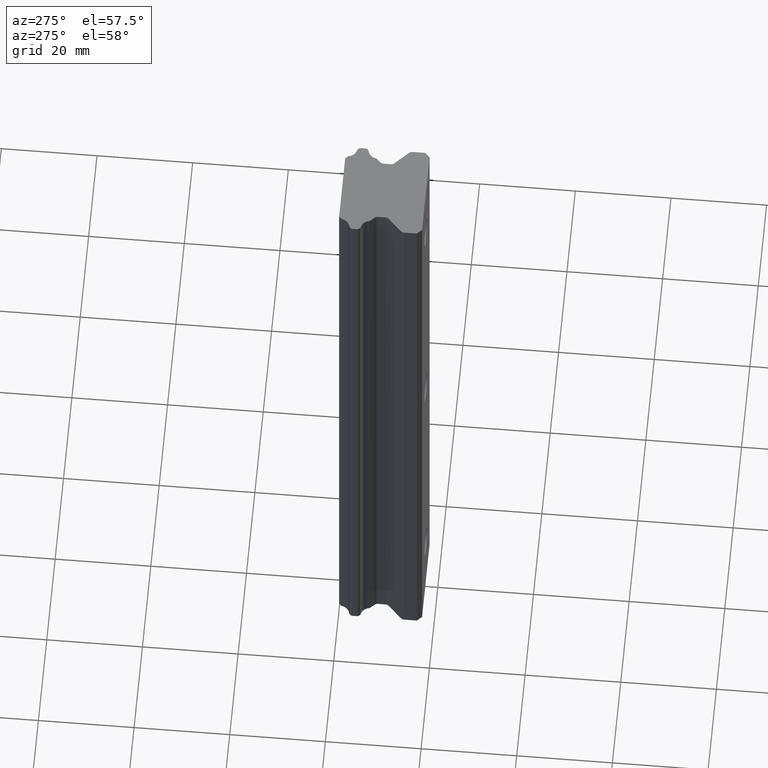
[diagram: clean part render]
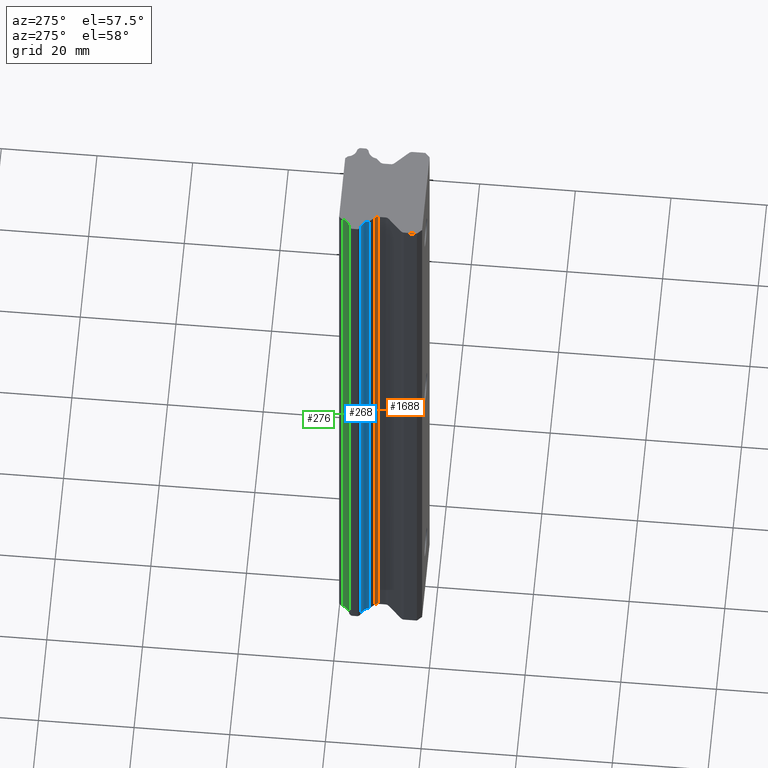
[diagram: same view with three faces highlighted in distinct colors, each labeled with its STEP entity id]
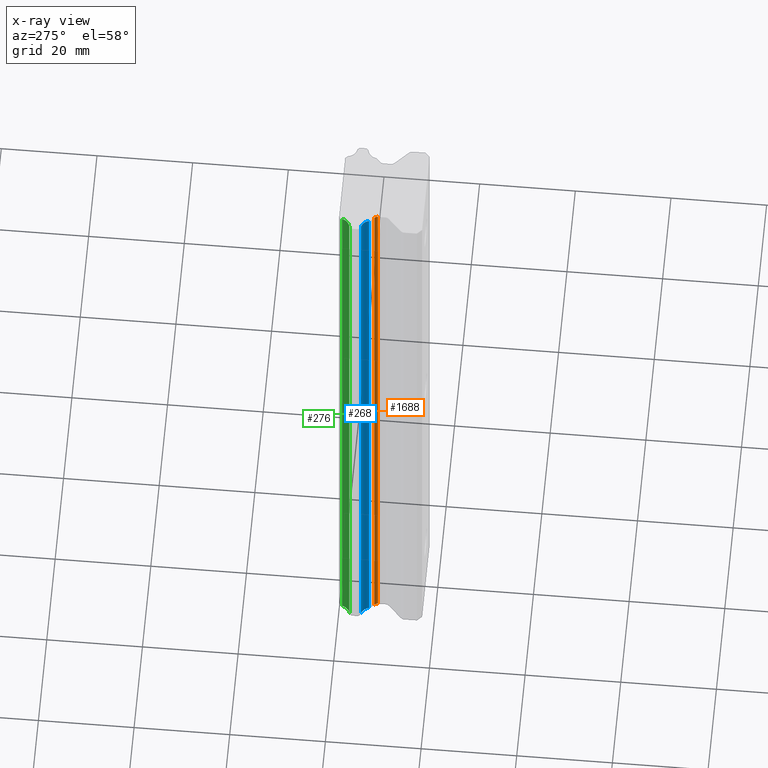
[diagram: x-ray of the same camera — body ghosted, the three highlighted faces saturated]
A machine part, auxiliary view with three faces highlighted in distinct colors.
The next image is the same camera in x-ray (body ghosted, the three faces saturated) — at least one of them is partly hidden behind the body in this view.
Their STEP definitions:

[orange] entity #1688 — the highlighted cylindrical surface (edge-blend (fillet) strip) has radius 1 mm, axis along (0, 0, 1).
#864 = CARTESIAN_POINT ( 'NONE',  ( -6.892893218842632800, -7.347827392350683200, -75.00000000000000000 ) ) ;
#875 = CARTESIAN_POINT ( 'NONE',  ( -6.892893218842632800, -7.347827392350683200, 75.00000000000004300 ) ) ;
#876 = DIRECTION ( 'NONE',  ( 1.000000000000000000, 0.0000000000000000000, 0.0000000000000000000 ) ) ;
#877 = DIRECTION ( 'NONE',  ( 0.0000000000000000000, 0.0000000000000000000, 1.000000000000000000 ) ) ;
#878 = CARTESIAN_POINT ( 'NONE',  ( -7.599999999999999600, -8.054934173567000100, -75.00000000000000000 ) ) ;
#879 = AXIS2_PLACEMENT_3D ( 'NONE', #878, #877, #876 ) ;
#880 = CIRCLE ( 'NONE', #879, 1.000000000000000000 ) ;
#881 = DIRECTION ( 'NONE',  ( 0.0000000000000000000, 0.0000000000000000000, -1.000000000000000000 ) ) ;
#882 = VECTOR ( 'NONE', #881, 1000.000000000000000 ) ;
#883 = CARTESIAN_POINT ( 'NONE',  ( -6.599999999999999600, -8.054934173568000200, -75.00000000000000000 ) ) ;
#884 = LINE ( 'NONE', #883, #882 ) ;
#885 = CARTESIAN_POINT ( 'NONE',  ( -6.599999999999999600, -8.054934173567646700, -75.00000000000000000 ) ) ;
#934 = CARTESIAN_POINT ( 'NONE',  ( -6.599999999999999600, -8.054934173567646700, 75.00000000000000000 ) ) ;
#935 = DIRECTION ( 'NONE',  ( 0.0000000000000000000, 0.0000000000000000000, 1.000000000000000000 ) ) ;
#936 = VECTOR ( 'NONE', #935, 1000.000000000000000 ) ;
#937 = CARTESIAN_POINT ( 'NONE',  ( -6.892893218842658600, -7.347827392350658300, -75.00000000000000000 ) ) ;
#938 = LINE ( 'NONE', #937, #936 ) ;
#946 = DIRECTION ( 'NONE',  ( 1.000000000000000000, 0.0000000000000000000, 0.0000000000000000000 ) ) ;
#947 = DIRECTION ( 'NONE',  ( 0.0000000000000000000, 0.0000000000000000000, 1.000000000000000000 ) ) ;
#948 = AXIS2_PLACEMENT_3D ( 'NONE', #955, #947, #946 ) ;
#949 = CYLINDRICAL_SURFACE ( 'NONE', #948, 1.000000000000000000 ) ;
#950 = FACE_OUTER_BOUND ( 'NONE', #1687, .T. ) ;
#955 = CARTESIAN_POINT ( 'NONE',  ( -7.599999999999999600, -8.054934173567000100, -75.00000000000000000 ) ) ;
#958 = DIRECTION ( 'NONE',  ( 1.000000000000000000, 6.938893903907228400E-015, 0.0000000000000000000 ) ) ;
#959 = DIRECTION ( 'NONE',  ( 0.0000000000000000000, 0.0000000000000000000, -1.000000000000000000 ) ) ;
#960 = CARTESIAN_POINT ( 'NONE',  ( -7.599999999999999600, -8.054934173567000100, 75.00000000000000000 ) ) ;
#961 = AXIS2_PLACEMENT_3D ( 'NONE', #960, #959, #958 ) ;
#962 = CIRCLE ( 'NONE', #961, 1.000000000000000000 ) ;
#1630 = VERTEX_POINT ( 'NONE', #864 ) ;
#1655 = VERTEX_POINT ( 'NONE', #885 ) ;
#1656 = EDGE_CURVE ( 'NONE', #1666, #1655, #884, .T. ) ;
#1659 = EDGE_CURVE ( 'NONE', #1655, #1630, #880, .T. ) ;
#1660 = ORIENTED_EDGE ( 'NONE', *, *, #1659, .F. ) ;
#1661 = ORIENTED_EDGE ( 'NONE', *, *, #1656, .F. ) ;
#1662 = VERTEX_POINT ( 'NONE', #875 ) ;
#1665 = EDGE_CURVE ( 'NONE', #1630, #1662, #938, .T. ) ;
#1666 = VERTEX_POINT ( 'NONE', #934 ) ;
#1667 = ORIENTED_EDGE ( 'NONE', *, *, #1665, .F. ) ;
#1684 = EDGE_CURVE ( 'NONE', #1662, #1666, #962, .T. ) ;
#1686 = ORIENTED_EDGE ( 'NONE', *, *, #1684, .F. ) ;
#1687 = EDGE_LOOP ( 'NONE', ( #1686, #1667, #1660, #1661 ) ) ;
#1688 = ADVANCED_FACE ( 'NONE', ( #950 ), #949, .F. ) ;

[blue] entity #268 — the highlighted cylindrical surface (edge-blend (fillet) strip) has radius 2.03 mm, axis along (0, 0, 1).
#268 = ADVANCED_FACE ( 'NONE', ( #650 ), #711, .F. ) ;
#271 = ORIENTED_EDGE ( 'NONE', *, *, #1915, .F. ) ;
#272 = ORIENTED_EDGE ( 'NONE', *, *, #273, .T. ) ;
#273 = EDGE_CURVE ( 'NONE', #1906, #1925, #706, .T. ) ;
#274 = ORIENTED_EDGE ( 'NONE', *, *, #1927, .F. ) ;
#278 = EDGE_LOOP ( 'NONE', ( #280, #271, #272, #274 ) ) ;
#280 = ORIENTED_EDGE ( 'NONE', *, *, #281, .F. ) ;
#281 = EDGE_CURVE ( 'NONE', #1908, #1928, #687, .T. ) ;
#650 = FACE_OUTER_BOUND ( 'NONE', #278, .T. ) ;
#683 = DIRECTION ( 'NONE',  ( 1.000000000000000000, 8.545435842250282000E-016, 0.0000000000000000000 ) ) ;
#684 = DIRECTION ( 'NONE',  ( 0.0000000000000000000, 0.0000000000000000000, -1.000000000000000000 ) ) ;
#685 = CARTESIAN_POINT ( 'NONE',  ( -9.780034550117999700, -6.699978150117999600, 75.00000000000000000 ) ) ;
#686 = AXIS2_PLACEMENT_3D ( 'NONE', #685, #684, #683 ) ;
#687 = CIRCLE ( 'NONE', #686, 2.029999999999999800 ) ;
#703 = DIRECTION ( 'NONE',  ( 1.000000000000000000, 8.545435842250282000E-016, 0.0000000000000000000 ) ) ;
#704 = DIRECTION ( 'NONE',  ( 0.0000000000000000000, 0.0000000000000000000, -1.000000000000000000 ) ) ;
#705 = AXIS2_PLACEMENT_3D ( 'NONE', #712, #704, #703 ) ;
#706 = CIRCLE ( 'NONE', #705, 2.029999999999999800 ) ;
#707 = DIRECTION ( 'NONE',  ( 1.000000000000000000, 0.0000000000000000000, 0.0000000000000000000 ) ) ;
#708 = DIRECTION ( 'NONE',  ( 0.0000000000000000000, 0.0000000000000000000, 1.000000000000000000 ) ) ;
#709 = CARTESIAN_POINT ( 'NONE',  ( -9.780034550117999700, -6.699978150117999600, -75.00000000000000000 ) ) ;
#710 = AXIS2_PLACEMENT_3D ( 'NONE', #709, #708, #707 ) ;
#711 = CYLINDRICAL_SURFACE ( 'NONE', #710, 2.029999999999999800 ) ;
#712 = CARTESIAN_POINT ( 'NONE',  ( -9.780034550117999700, -6.699978150117999600, -75.00000000000000000 ) ) ;
#1351 = DIRECTION ( 'NONE',  ( 0.0000000000000000000, 0.0000000000000000000, 1.000000000000000000 ) ) ;
#1352 = VECTOR ( 'NONE', #1351, 1000.000000000000000 ) ;
#1353 = CARTESIAN_POINT ( 'NONE',  ( -9.412352166642335800, -4.703553930448830300, -75.00000000000000000 ) ) ;
#1354 = LINE ( 'NONE', #1353, #1352 ) ;
#1360 = CARTESIAN_POINT ( 'NONE',  ( -9.412352166611146500, -4.703553930453900900, 75.00000000000000000 ) ) ;
#1361 = CARTESIAN_POINT ( 'NONE',  ( -9.412352166611146500, -4.703553930453900900, -75.00000000000000000 ) ) ;
#1386 = CARTESIAN_POINT ( 'NONE',  ( -7.783610330484870100, -6.332295766441657000, 75.00000000000000000 ) ) ;
#1387 = DIRECTION ( 'NONE',  ( 0.0000000000000000000, 0.0000000000000000000, -1.000000000000000000 ) ) ;
#1388 = VECTOR ( 'NONE', #1387, 1000.000000000000000 ) ;
#1389 = CARTESIAN_POINT ( 'NONE',  ( -7.783610330480372300, -6.332295766471069100, -75.00000000000000000 ) ) ;
#1395 = LINE ( 'NONE', #1389, #1388 ) ;
#1396 = CARTESIAN_POINT ( 'NONE',  ( -7.783610330484870100, -6.332295766441657000, -75.00000000000000000 ) ) ;
#1906 = VERTEX_POINT ( 'NONE', #1361 ) ;
#1908 = VERTEX_POINT ( 'NONE', #1360 ) ;
#1915 = EDGE_CURVE ( 'NONE', #1906, #1908, #1354, .T. ) ;
#1925 = VERTEX_POINT ( 'NONE', #1396 ) ;
#1927 = EDGE_CURVE ( 'NONE', #1928, #1925, #1395, .T. ) ;
#1928 = VERTEX_POINT ( 'NONE', #1386 ) ;

[green] entity #276 — the highlighted cylindrical surface (edge-blend (fillet) strip) has radius 2.03 mm, axis along (0, 0, 1).
#263 = EDGE_CURVE ( 'NONE', #1637, #1806, #661, .T. ) ;
#264 = EDGE_LOOP ( 'NONE', ( #265, #269, #270, #282 ) ) ;
#265 = ORIENTED_EDGE ( 'NONE', *, *, #275, .F. ) ;
#269 = ORIENTED_EDGE ( 'NONE', *, *, #1647, .F. ) ;
#270 = ORIENTED_EDGE ( 'NONE', *, *, #263, .T. ) ;
#275 = EDGE_CURVE ( 'NONE', #1631, #1804, #702, .T. ) ;
#276 = ADVANCED_FACE ( 'NONE', ( #697 ), #696, .F. ) ;
#282 = ORIENTED_EDGE ( 'NONE', *, *, #1873, .F. ) ;
#657 = DIRECTION ( 'NONE',  ( 1.000000000000000000, 0.0000000000000000000, 0.0000000000000000000 ) ) ;
#658 = DIRECTION ( 'NONE',  ( 0.0000000000000000000, 0.0000000000000000000, -1.000000000000000000 ) ) ;
#659 = CARTESIAN_POINT ( 'NONE',  ( -9.780034550117999700, -0.3002658498822000100, -75.00000000000000000 ) ) ;
#660 = AXIS2_PLACEMENT_3D ( 'NONE', #659, #658, #657 ) ;
#661 = CIRCLE ( 'NONE', #660, 2.029999999999999800 ) ;
#691 = DIRECTION ( 'NONE',  ( 1.000000000000000000, 0.0000000000000000000, 0.0000000000000000000 ) ) ;
#692 = DIRECTION ( 'NONE',  ( 0.0000000000000000000, 0.0000000000000000000, 1.000000000000000000 ) ) ;
#693 = CARTESIAN_POINT ( 'NONE',  ( -9.780034550117999700, -0.3002658498822000100, -75.00000000000000000 ) ) ;
#694 = AXIS2_PLACEMENT_3D ( 'NONE', #693, #692, #691 ) ;
#696 = CYLINDRICAL_SURFACE ( 'NONE', #694, 2.029999999999999800 ) ;
#697 = FACE_OUTER_BOUND ( 'NONE', #264, .T. ) ;
#698 = DIRECTION ( 'NONE',  ( 1.000000000000000000, 0.0000000000000000000, 0.0000000000000000000 ) ) ;
#699 = DIRECTION ( 'NONE',  ( 0.0000000000000000000, 0.0000000000000000000, -1.000000000000000000 ) ) ;
#700 = CARTESIAN_POINT ( 'NONE',  ( -9.780034550117999700, -0.3002658498822000100, 75.00000000000000000 ) ) ;
#701 = AXIS2_PLACEMENT_3D ( 'NONE', #700, #699, #698 ) ;
#702 = CIRCLE ( 'NONE', #701, 2.029999999999999800 ) ;
#852 = CARTESIAN_POINT ( 'NONE',  ( -7.785406885118337800, -0.6775727250147346400, -75.00000000000000000 ) ) ;
#863 = CARTESIAN_POINT ( 'NONE',  ( -7.785406885118337800, -0.6775727250147346400, 75.00000000000000000 ) ) ;
#894 = DIRECTION ( 'NONE',  ( 0.0000000000000000000, 0.0000000000000000000, 1.000000000000000000 ) ) ;
#895 = VECTOR ( 'NONE', #894, 1000.000000000000000 ) ;
#896 = CARTESIAN_POINT ( 'NONE',  ( -7.785406885112868400, -0.6775727249801479800, -75.00000000000000000 ) ) ;
#901 = LINE ( 'NONE', #896, #895 ) ;
#1142 = CARTESIAN_POINT ( 'NONE',  ( -9.402727674987316300, -2.294893514882139700, -75.00000000000000000 ) ) ;
#1144 = CARTESIAN_POINT ( 'NONE',  ( -9.402727674987316300, -2.294893514882139700, 75.00000000000000000 ) ) ;
#1305 = DIRECTION ( 'NONE',  ( 0.0000000000000000000, 0.0000000000000000000, -1.000000000000000000 ) ) ;
#1306 = VECTOR ( 'NONE', #1305, 1000.000000000000000 ) ;
#1307 = CARTESIAN_POINT ( 'NONE',  ( -9.402727675023987400, -2.294893514888074900, -75.00000000000000000 ) ) ;
#1308 = LINE ( 'NONE', #1307, #1306 ) ;
#1631 = VERTEX_POINT ( 'NONE', #863 ) ;
#1637 = VERTEX_POINT ( 'NONE', #852 ) ;
#1647 = EDGE_CURVE ( 'NONE', #1637, #1631, #901, .T. ) ;
#1804 = VERTEX_POINT ( 'NONE', #1144 ) ;
#1806 = VERTEX_POINT ( 'NONE', #1142 ) ;
#1873 = EDGE_CURVE ( 'NONE', #1804, #1806, #1308, .T. ) ;